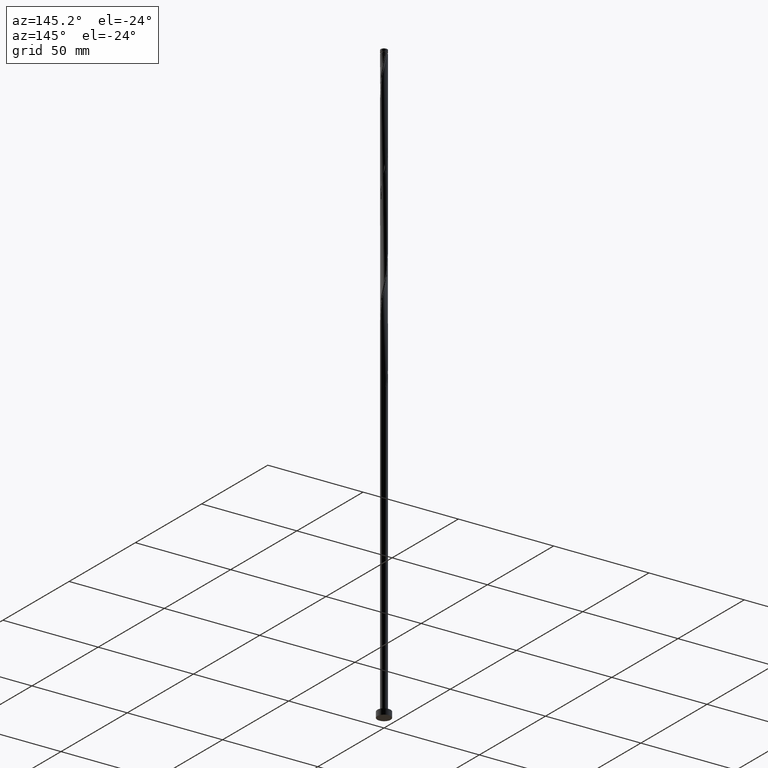
[diagram: clean part render]
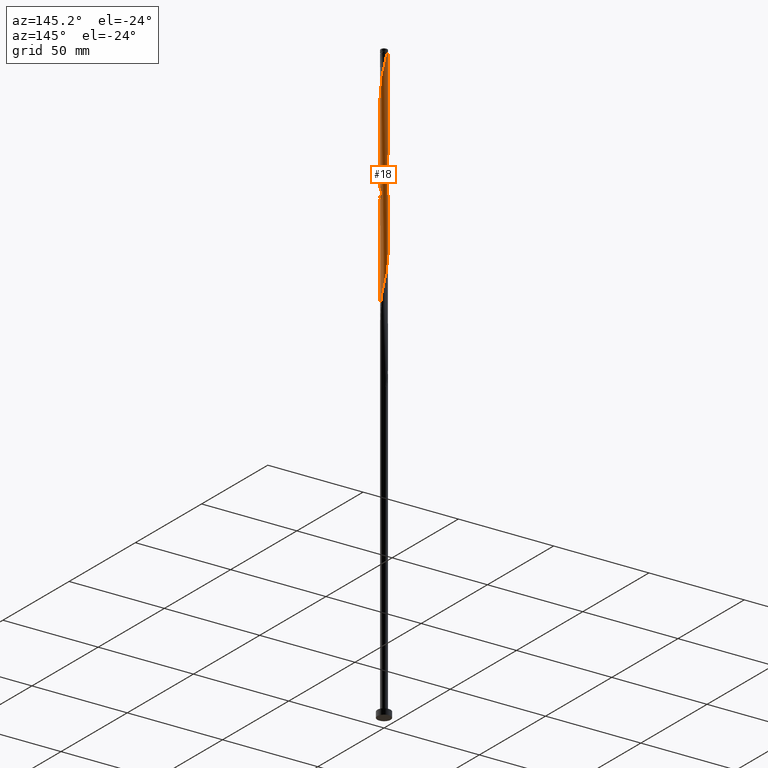
[diagram: same view with one face highlighted and labeled with its STEP entity id]
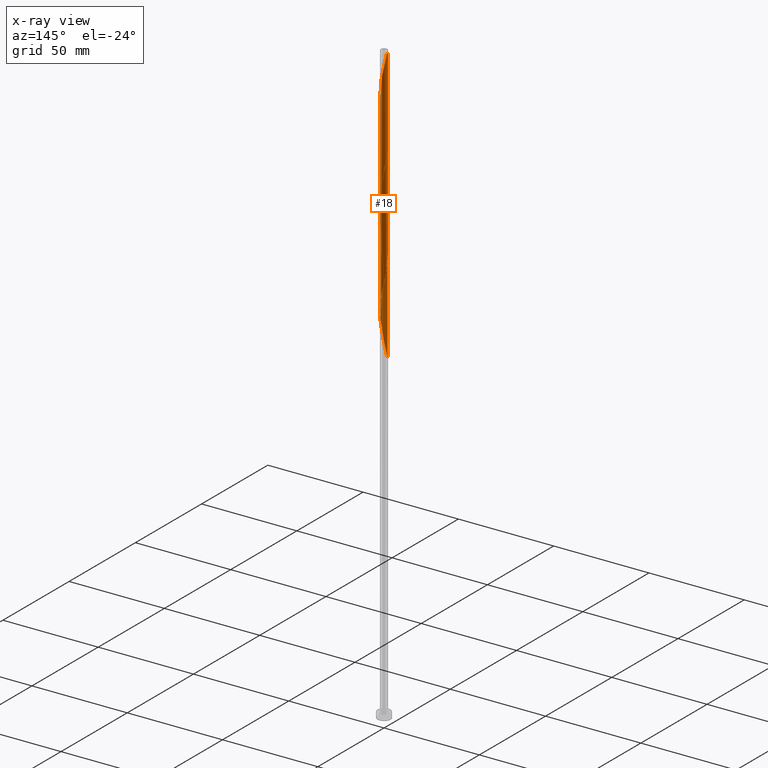
[diagram: x-ray of the same camera — body ghosted, the highlighted face saturated]
A machine part, auxiliary view. The second image highlights one B-rep face of the part: STEP entity #18.
The next image is the same camera in x-ray: the body ghosted, the highlighted face saturated — about 0% of this face is hidden behind the body in this view.
In plain terms, the highlighted cylindrical surface (bore or boss wall) has radius 1.75 mm, axis along (-0, -0, -1).
Its self-contained STEP definition (entity closure, byte-faithful):
#2 = CARTESIAN_POINT ( 'NONE',  ( 1.057869059262093181, 1.394063504097261541, 256.7891389798089108 ) ) ;
#18 = ADVANCED_FACE ( 'NONE', ( #1532 ), #797, .T. ) ;
#25 = CARTESIAN_POINT ( 'NONE',  ( 1.123713410427933601, 1.341554386234278251, 305.5391389798089676 ) ) ;
#34 = CARTESIAN_POINT ( 'NONE',  ( -0.6214747345873319340, -1.647770669082449624, 282.1016389798089108 ) ) ;
#50 = CARTESIAN_POINT ( 'NONE',  ( -1.123713410427933601, -1.341554386234278251, 279.2891389798090245 ) ) ;
#52 = CARTESIAN_POINT ( 'NONE',  ( 1.513256721033685581, -0.9007958258480039948, 244.6016389798089961 ) ) ;
#62 = CARTESIAN_POINT ( 'NONE',  ( 1.749999999999999334, -0.1758816176703649481, 248.2503849787513843 ) ) ;
#78 = CARTESIAN_POINT ( 'NONE',  ( -1.513256721033685581, 0.9007958258480038838, 218.3516389798089676 ) ) ;
#88 = CARTESIAN_POINT ( 'NONE',  ( 1.744748756533622158, 0.2392295972349314792, 197.7266389798089392 ) ) ;
#97 = CARTESIAN_POINT ( 'NONE',  ( 1.214942292676181923, 1.274870287160836391, 203.3516389798089961 ) ) ;
#105 = CARTESIAN_POINT ( 'NONE',  ( 0.2392295972349315902, -1.744748756533622158, 184.6016389798089961 ) ) ;
#114 = VERTEX_POINT ( 'NONE', #1695 ) ;
#115 = CARTESIAN_POINT ( 'NONE',  ( -1.714999999999999636, 0.3482456029873197689, 221.1641389798090245 ) ) ;
#124 = CARTESIAN_POINT ( 'NONE',  ( -1.749999999999999556, -2.332152112738368379E-15, 170.3386560577150703 ) ) ;
#129 = CARTESIAN_POINT ( 'NONE',  ( 0.5414796949160103345, 1.675762144104131490, 259.6016389798089676 ) ) ;
#131 = ORIENTED_EDGE ( 'NONE', *, *, #566, .F. ) ;
#133 = CARTESIAN_POINT ( 'NONE',  ( -1.749493306214745303, -0.04210904308815126978, 170.5391389798089961 ) ) ;
#147 = CARTESIAN_POINT ( 'NONE',  ( 0.1550115110586292588, 1.754237855895867559, 261.4766389798089676 ) ) ;
#161 = CARTESIAN_POINT ( 'NONE',  ( 0.7970156341411801515, 1.557968574437411435, 307.4141389798088539 ) ) ;
#170 = CARTESIAN_POINT ( 'NONE',  ( -0.1550115110586238742, 1.754237855895869336, 312.1016389798089108 ) ) ;
#180 = CARTESIAN_POINT ( 'NONE',  ( 0.1550115110586289258, -1.754237855895869780, 285.8516389798089108 ) ) ;
#187 = CARTESIAN_POINT ( 'NONE',  ( 1.749493306214747523, -0.04210904308815196367, 298.0391389798088539 ) ) ;
#208 = CARTESIAN_POINT ( 'NONE',  ( 1.714999999999999636, -0.3482456029873200465, 247.4141389798090245 ) ) ;
#214 =( BOUNDED_CURVE ( )  B_SPLINE_CURVE ( 2, ( #325, #62, #208, #1142, #1297, #52, #528, #1758, #1041, #790, #1204, #1329, #1610, #942, #676, #359, #1221, #1066, #251, #1076, #1639, #223, #773, #1488, #242, #1340, #1498, #1750, #367, #1618, #115, #232, #385, #78, #1786, #1058, #909, #808, #638, #1357, #1601, #352, #1461, #216, #780, #924, #1322, #1478, #650, #97, #1186, #1776, #1212, #500, #519, #88, #1050, #1628, #666, #658, #916, #798, #1468, #1195, #510, #1767, #376, #933, #1348, #105, #692, #271, #1648, #959, #1516, #1668, #395, #414, #950, #683, #1369, #1104, #1524, #1085, #133, #1506, #124 ),
 .UNSPECIFIED., .F., .F. ) 
 B_SPLINE_CURVE_WITH_KNOTS ( ( 3, 2, 2, 2, 2, 2, 2, 2, 2, 2, 2, 2, 2, 2, 2, 2, 2, 2, 2, 2, 2, 2, 2, 2, 2, 2, 2, 2, 2, 2, 2, 2, 2, 2, 2, 2, 2, 2, 2, 2, 2, 2, 2, 3 ),
 ( 0.5545303401299220836, 0.5625000000000000000, 0.5714285714285713969, 0.5803571428571429047, 0.5892857142857143016, 0.5982142857142856984, 0.6071428571428570953, 0.6160714285714286031, 0.6250000000000000000, 0.6339285714285713969, 0.6428571428571429047, 0.6517857142857143016, 0.6607142857142856984, 0.6696428571428570953, 0.6785714285714286031, 0.6875000000000000000, 0.6964285714285713969, 0.7053571428571429047, 0.7142857142857143016, 0.7232142857142856984, 0.7321428571428570953, 0.7410714285714286031, 0.7500000000000000000, 0.7589285714285713969, 0.7678571428571429047, 0.7767857142857143016, 0.7857142857142856984, 0.7946428571428570953, 0.8035714285714286031, 0.8125000000000000000, 0.8214285714285713969, 0.8303571428571429047, 0.8392857142857143016, 0.8482142857142856984, 0.8571428571428570953, 0.8660714285714286031, 0.8750000000000000000, 0.8839285714285713969, 0.8928571428571429047, 0.9017857142857141906, 0.9107142857142855874, 0.9196428571428569843, 0.9285714285714286031, 0.9295303401299221946 ),
 .UNSPECIFIED. ) 
 CURVE ( )  GEOMETRIC_REPRESENTATION_ITEM ( )  RATIONAL_B_SPLINE_CURVE ( ( 0.9079949616362397169, 0.9039886423361027656, 0.9090909090909695678, 0.9033747362666444403, 0.9090909090909695678, 0.9033747362666444403, 0.9090909090909695678, 0.9033747362666444403, 0.9090909090909695678, 0.9033747362666444403, 0.9090909090909695678, 0.9033747362666444403, 0.9090909090909695678, 0.9033747362666444403, 0.9090909090909695678, 0.9033747362666444403, 0.9090909090909695678, 0.9033747362666444403, 0.9090909090909695678, 0.9033747362666444403, 0.9090909090909695678, 0.9033747362666444403, 0.9090909090909695678, 0.9033747362666444403, 0.9090909090909695678, 0.9033747362666444403, 0.9090909090909695678, 0.9033747362666444403, 0.9090909090909695678, 0.9033747362666444403, 0.9090909090909695678, 0.9033747362666444403, 0.9090909090909695678, 0.9033747362666444403, 0.9090909090909695678, 0.9033747362666444403, 0.9090909090909695678, 0.9033747362666444403, 0.9090909090909695678, 0.9033747362666444403, 0.9090909090909695678, 0.9033747362666444403, 0.9090909090909695678, 0.9033747362666444403, 0.9090909090909695678, 0.9033747362666444403, 0.9090909090909695678, 0.9033747362666444403, 0.9090909090909695678, 0.9033747362666444403, 0.9090909090909695678, 0.9033747362666444403, 0.9090909090909695678, 0.9033747362666444403, 0.9090909090909695678, 0.9033747362666444403, 0.9090909090909695678, 0.9033747362666444403, 0.9090909090909695678, 0.9033747362666444403, 0.9090909090909695678, 0.9033747362666444403, 0.9090909090909695678, 0.9033747362666444403, 0.9090909090909695678, 0.9033747362666444403, 0.9090909090909695678, 0.9033747362666444403, 0.9090909090909695678, 0.9033747362666444403, 0.9090909090909695678, 0.9033747362666444403, 0.9090909090909695678, 0.9033747362666444403, 0.9090909090909695678, 0.9033747362666444403, 0.9090909090909695678, 0.9033747362666444403, 0.9090909090909695678, 0.9033747362666444403, 0.9090909090909695678, 0.9033747362666444403, 0.9090909090909695678, 0.9033747362666444403, 0.9090909090909695678, 0.9084770030215112424, 0.9079949616362394949 ) ) 
 REPRESENTATION_ITEM ( '' )  );
#216 = CARTESIAN_POINT ( 'NONE',  ( 0.1550115110586292588, 1.754237855895867559, 208.9766389798089392 ) ) ;
#223 = CARTESIAN_POINT ( 'NONE',  ( -1.214942292676181479, -1.274870287160836391, 229.6016389798089392 ) ) ;
#232 = CARTESIAN_POINT ( 'NONE',  ( -1.675762144104131490, 0.5414796949160098904, 220.2266389798090245 ) ) ;
#237 = EDGE_CURVE ( 'NONE', #250, #907, #263, .T. ) ;
#242 = CARTESIAN_POINT ( 'NONE',  ( -1.557968574437410103, -0.7970156341411784862, 226.7891389798089961 ) ) ;
#250 = VERTEX_POINT ( 'NONE', #873 ) ;
#251 = CARTESIAN_POINT ( 'NONE',  ( -0.7211377603820071647, -1.594509432568908869, 232.4141389798090245 ) ) ;
#263 =( BOUNDED_CURVE ( )  B_SPLINE_CURVE ( 2, ( #573, #862, #1120, #1129, #1541, #1403, #716, #992, #50, #856, #1440, #34, #1687, #1579, #594, #180, #737, #744, #986, #1140, #453, #1707, #576, #1003, #1415, #1561, #1723, #1295, #187, #1158, #1288, #865, #1021, #601, #1430, #314, #25, #609, #161, #1422, #1150, #719, #1279, #170, #585 ),
 .UNSPECIFIED., .F., .T. ) 
 B_SPLINE_CURVE_WITH_KNOTS ( ( 3, 2, 2, 2, 2, 2, 2, 2, 2, 2, 2, 2, 2, 2, 2, 2, 2, 2, 2, 2, 2, 2, 3 ),
 ( 0.5545303401299224166, 0.5625000000000000000, 0.5714285714285713969, 0.5803571428571427937, 0.5892857142857143016, 0.5982142857142855874, 0.6071428571428572063, 0.6160714285714284921, 0.6249999999999998890, 0.6339285714285712858, 0.6428571428571426827, 0.6517857142857141906, 0.6607142857142855874, 0.6696428571428570953, 0.6785714285714284921, 0.6874999999999998890, 0.6964285714285711748, 0.7053571428571425717, 0.7142857142857141906, 0.7232142857142854764, 0.7321428571428569843, 0.7410714285714283811, 0.7499999999999997780 ),
 .UNSPECIFIED. ) 
 CURVE ( )  GEOMETRIC_REPRESENTATION_ITEM ( )  RATIONAL_B_SPLINE_CURVE ( ( 0.9079949616362448239, 0.9039886423361083168, 0.9090909090909750079, 0.9033747362666497693, 0.9090909090909750079, 0.9033747362666497693, 0.9090909090909750079, 0.9033747362666497693, 0.9090909090909750079, 0.9033747362666497693, 0.9090909090909750079, 0.9033747362666497693, 0.9090909090909750079, 0.9033747362666497693, 0.9090909090909750079, 0.9033747362666497693, 0.9090909090909750079, 0.9033747362666497693, 0.9090909090909750079, 0.9033747362666497693, 0.9090909090909750079, 0.9033747362666497693, 0.9090909090909750079, 0.9033747362666497693, 0.9090909090909750079, 0.9033747362666497693, 0.9090909090909750079, 0.9033747362666497693, 0.9090909090909750079, 0.9033747362666497693, 0.9090909090909750079, 0.9033747362666497693, 0.9090909090909750079, 0.9033747362666497693, 0.9090909090909750079, 0.9033747362666497693, 0.9090909090909750079, 0.9033747362666497693, 0.9090909090909750079, 0.9033747362666497693, 0.9090909090909750079, 0.9033747362666497693, 0.9090909090909750079, 0.9033747362666499914, 0.9090909090909747858 ) ) 
 REPRESENTATION_ITEM ( '' )  );
#267 = CARTESIAN_POINT ( 'NONE',  ( -0.4303521659111312903, 1.696259712808035447, 264.2891389798089676 ) ) ;
#271 = CARTESIAN_POINT ( 'NONE',  ( -0.1550115110586294254, -1.754237855895867559, 182.7266389798089676 ) ) ;
#298 = DIRECTION ( 'NONE',  ( -0.000000000000000000, -0.000000000000000000, -1.000000000000000000 ) ) ;
#314 = CARTESIAN_POINT ( 'NONE',  ( 1.274870287160838611, 1.214942292676182367, 304.6016389798089108 ) ) ;
#321 = CARTESIAN_POINT ( 'NONE',  ( 1.749999999999999556, 2.130654170197773798E-15, 249.0886560577149851 ) ) ;
#323 = CARTESIAN_POINT ( 'NONE',  ( -1.749999999999973799, 0.000000000000000000, 313.0391389798089676 ) ) ;
#325 = CARTESIAN_POINT ( 'NONE',  ( 1.749999999999999556, 2.130654170197774193E-15, 249.0886560577149851 ) ) ;
#352 = CARTESIAN_POINT ( 'NONE',  ( -0.2392295972349318955, 1.744748756533622602, 210.8516389798089676 ) ) ;
#359 = CARTESIAN_POINT ( 'NONE',  ( -0.1550115110586294254, -1.754237855895867559, 235.2266389798089108 ) ) ;
#367 = CARTESIAN_POINT ( 'NONE',  ( -1.749493306214745303, -0.04210904308815126978, 223.0391389798089676 ) ) ;
#376 = CARTESIAN_POINT ( 'NONE',  ( 0.7970156341411782641, -1.557968574437410103, 187.4141389798090245 ) ) ;
#385 = CARTESIAN_POINT ( 'NONE',  ( -1.594509432568908869, 0.7211377603820070536, 219.2891389798089961 ) ) ;
#395 = CARTESIAN_POINT ( 'NONE',  ( -1.057869059262093181, -1.394063504097261541, 178.0391389798089676 ) ) ;
#401 = EDGE_CURVE ( 'NONE', #421, #907, #642, .T. ) ;
#402 = ORIENTED_EDGE ( 'NONE', *, *, #1284, .T. ) ;
#410 = CARTESIAN_POINT ( 'NONE',  ( -0.9725565336950267037, 1.468166479792371915, 267.1016389798089108 ) ) ;
#414 = CARTESIAN_POINT ( 'NONE',  ( -1.214942292676181479, -1.274870287160836391, 177.1016389798089392 ) ) ;
#421 = VERTEX_POINT ( 'NONE', #323 ) ;
#430 = CARTESIAN_POINT ( 'NONE',  ( 1.749493306214745303, 0.04210904308815104774, 249.2891389798089392 ) ) ;
#446 = CARTESIAN_POINT ( 'NONE',  ( -0.3482456029873556291, 1.715000000000458824, 313.0391389798088539 ) ) ;
#453 = CARTESIAN_POINT ( 'NONE',  ( 1.057869059262093625, -1.394063504097263539, 290.5391389798089108 ) ) ;
#477 = EDGE_CURVE ( 'NONE', #250, #1339, #1563, .T. ) ;
#492 = CARTESIAN_POINT ( 'NONE',  ( -1.750000000000000000, 0.000000000000000000, 315.0000000000000000 ) ) ;
#496 = VECTOR ( 'NONE', #1005, 1000.000000000000000 ) ;
#497 = CARTESIAN_POINT ( 'NONE',  ( -1.513256721033685581, 0.9007958258480038838, 270.8516389798089676 ) ) ;
#500 = CARTESIAN_POINT ( 'NONE',  ( 1.647770669082447403, 0.6214747345873303797, 199.6016389798089676 ) ) ;
#510 = CARTESIAN_POINT ( 'NONE',  ( 1.123713410427931603, -1.341554386234277141, 189.2891389798089392 ) ) ;
#519 = CARTESIAN_POINT ( 'NONE',  ( 1.696259712808035447, 0.4303521659111308462, 198.6641389798089392 ) ) ;
#528 = CARTESIAN_POINT ( 'NONE',  ( 1.394063504097261541, -1.057869059262093181, 243.6641389798090245 ) ) ;
#543 = CARTESIAN_POINT ( 'NONE',  ( -0.7970156341411784862, 1.557968574437410103, 266.1641389798089676 ) ) ;
#561 = CARTESIAN_POINT ( 'NONE',  ( 1.696259712808035447, 0.4303521659111308462, 251.1641389798089392 ) ) ;
#566 = EDGE_CURVE ( 'NONE', #1111, #1339, #214, .T. ) ;
#573 = CARTESIAN_POINT ( 'NONE',  ( -1.750000000000002220, 5.410592901552984017E-16, 271.9896219019029218 ) ) ;
#576 = CARTESIAN_POINT ( 'NONE',  ( 1.341554386234278251, -1.123713410427933601, 292.4141389798090813 ) ) ;
#585 = CARTESIAN_POINT ( 'NONE',  ( -0.3482456029873556291, 1.715000000000458824, 313.0391389798088539 ) ) ;
#594 = CARTESIAN_POINT ( 'NONE',  ( -0.04210904308815181102, -1.749493306214747523, 284.9141389798089676 ) ) ;
#601 = CARTESIAN_POINT ( 'NONE',  ( 1.513256721033688024, 0.9007958258480041058, 302.7266389798089676 ) ) ;
#609 = CARTESIAN_POINT ( 'NONE',  ( 0.9725565336950284800, 1.468166479792373025, 306.4766389798088539 ) ) ;
#612 = AXIS2_PLACEMENT_3D ( 'NONE', #1075, #1497, #1647 ) ;
#628 = LINE ( 'NONE', #1712, #815 ) ;
#638 = CARTESIAN_POINT ( 'NONE',  ( -0.7970156341411784862, 1.557968574437410103, 213.6641389798089392 ) ) ;
#642 = CIRCLE ( 'NONE', #1661, 1.749999999999973799 ) ;
#650 = CARTESIAN_POINT ( 'NONE',  ( 1.057869059262093181, 1.394063504097261541, 204.2891389798089961 ) ) ;
#654 = LINE ( 'NONE', #1782, #1330 ) ;
#658 = CARTESIAN_POINT ( 'NONE',  ( 1.675762144104131490, -0.5414796949160101125, 193.9766389798089108 ) ) ;
#666 = CARTESIAN_POINT ( 'NONE',  ( 1.714999999999999636, -0.3482456029873200465, 194.9141389798089961 ) ) ;
#676 = CARTESIAN_POINT ( 'NONE',  ( 0.04210904308815115182, -1.749493306214745303, 236.1641389798090245 ) ) ;
#683 = CARTESIAN_POINT ( 'NONE',  ( -1.468166479792371915, -0.9725565336950264816, 175.2266389798089108 ) ) ;
#688 = CARTESIAN_POINT ( 'NONE',  ( 1.557968574437410103, 0.7970156341411782641, 253.0391389798089392 ) ) ;
#692 = CARTESIAN_POINT ( 'NONE',  ( 0.04210904308815115182, -1.749493306214745303, 183.6641389798089676 ) ) ;
#714 = CARTESIAN_POINT ( 'NONE',  ( 1.750000000000000222, 0.02105757004118054970, 249.1890187459400750 ) ) ;
#716 = CARTESIAN_POINT ( 'NONE',  ( -1.394063504097263539, -1.057869059262093625, 277.4141389798089676 ) ) ;
#719 = CARTESIAN_POINT ( 'NONE',  ( 0.2392295972349328392, 1.744748756533624601, 310.2266389798089108 ) ) ;
#737 = CARTESIAN_POINT ( 'NONE',  ( 0.3482456029873196579, -1.715000000000001856, 286.7891389798089676 ) ) ;
#744 = CARTESIAN_POINT ( 'NONE',  ( 0.5414796949160100015, -1.675762144104133489, 287.7266389798088539 ) ) ;
#752 =( BOUNDED_CURVE ( )  B_SPLINE_CURVE ( 2, ( #929, #1366, #1054, #1344, #1614, #497, #920, #786, #1682, #410, #543, #1539, #267, #831, #1393, #147, #1234, #129, #1099, #1226, #2, #1530, #1791, #980, #688, #1798, #561, #1375, #430, #714, #1255 ),
 .UNSPECIFIED., .F., .F. ) 
 B_SPLINE_CURVE_WITH_KNOTS ( ( 3, 2, 2, 2, 2, 2, 2, 2, 2, 2, 2, 2, 2, 2, 2, 3 ),
 ( 0.4295303401299220281, 0.4375000000000000000, 0.4464285714285714524, 0.4553571428571428492, 0.4642857142857143016, 0.4732142857142856984, 0.4821428571428571508, 0.4910714285714285476, 0.5000000000000000000, 0.5089285714285713969, 0.5178571428571429047, 0.5267857142857143016, 0.5357142857142856984, 0.5446428571428570953, 0.5535714285714286031, 0.5545303401299220836 ),
 .UNSPECIFIED. ) 
 CURVE ( )  GEOMETRIC_REPRESENTATION_ITEM ( )  RATIONAL_B_SPLINE_CURVE ( ( 0.9079949616362394949, 0.9039886423361027656, 0.9090909090909695678, 0.9033747362666444403, 0.9090909090909695678, 0.9033747362666444403, 0.9090909090909695678, 0.9033747362666444403, 0.9090909090909695678, 0.9033747362666444403, 0.9090909090909695678, 0.9033747362666444403, 0.9090909090909695678, 0.9033747362666444403, 0.9090909090909695678, 0.9033747362666444403, 0.9090909090909695678, 0.9033747362666444403, 0.9090909090909695678, 0.9033747362666444403, 0.9090909090909695678, 0.9033747362666444403, 0.9090909090909695678, 0.9033747362666444403, 0.9090909090909695678, 0.9033747362666444403, 0.9090909090909695678, 0.9033747362666444403, 0.9090909090909695678, 0.9084770030215113534, 0.9079949616362397169 ) ) 
 REPRESENTATION_ITEM ( '' )  );
#773 = CARTESIAN_POINT ( 'NONE',  ( -1.341554386234276919, -1.123713410427931603, 228.6641389798089961 ) ) ;
#780 = CARTESIAN_POINT ( 'NONE',  ( 0.3482456029873201575, 1.714999999999999636, 208.0391389798089961 ) ) ;
#786 = CARTESIAN_POINT ( 'NONE',  ( -1.274870287160836391, 1.214942292676181479, 268.9766389798089676 ) ) ;
#790 = CARTESIAN_POINT ( 'NONE',  ( 0.9725565336950264816, -1.468166479792372137, 240.8516389798089676 ) ) ;
#797 = CYLINDRICAL_SURFACE ( 'NONE', #612, 1.750000000000000000 ) ;
#798 = CARTESIAN_POINT ( 'NONE',  ( 1.513256721033685581, -0.9007958258480039948, 192.1016389798089392 ) ) ;
#808 = CARTESIAN_POINT ( 'NONE',  ( -0.9725565336950267037, 1.468166479792371915, 214.6016389798089392 ) ) ;
#815 = VECTOR ( 'NONE', #1175, 1000.000000000000000 ) ;
#831 = CARTESIAN_POINT ( 'NONE',  ( -0.2392295972349318955, 1.744748756533622602, 263.3516389798089108 ) ) ;
#856 = CARTESIAN_POINT ( 'NONE',  ( -0.9725565336950283690, -1.468166479792373247, 280.2266389798089108 ) ) ;
#862 = CARTESIAN_POINT ( 'NONE',  ( -1.750000000000000444, -0.1758816176703718315, 272.8278929808665225 ) ) ;
#865 = CARTESIAN_POINT ( 'NONE',  ( 1.675762144104133489, 0.5414796949160100015, 300.8516389798087971 ) ) ;
#873 = CARTESIAN_POINT ( 'NONE',  ( -1.750000000000002220, 5.410592901552984017E-16, 271.9896219019029218 ) ) ;
#898 = ORIENTED_EDGE ( 'NONE', *, *, #1284, .F. ) ;
#907 = VERTEX_POINT ( 'NONE', #446 ) ;
#909 = CARTESIAN_POINT ( 'NONE',  ( -1.123713410427931603, 1.341554386234276919, 215.5391389798089676 ) ) ;
#916 = CARTESIAN_POINT ( 'NONE',  ( 1.594509432568908869, -0.7211377603820073867, 193.0391389798089676 ) ) ;
#920 = CARTESIAN_POINT ( 'NONE',  ( -1.394063504097261541, 1.057869059262092959, 269.9141389798090245 ) ) ;
#924 = CARTESIAN_POINT ( 'NONE',  ( 0.5414796949160103345, 1.675762144104131490, 207.1016389798089676 ) ) ;
#929 = CARTESIAN_POINT ( 'NONE',  ( -1.750000000000000222, -1.567206219760183938E-16, 275.3386560577150135 ) ) ;
#933 = CARTESIAN_POINT ( 'NONE',  ( 0.6214747345873304907, -1.647770669082447403, 186.4766389798089392 ) ) ;
#938 = CARTESIAN_POINT ( 'NONE',  ( -1.749999999999999556, -2.332152112738368379E-15, 170.3386560577150419 ) ) ;
#942 = CARTESIAN_POINT ( 'NONE',  ( 0.2392295972349315902, -1.744748756533622158, 237.1016389798089108 ) ) ;
#950 = CARTESIAN_POINT ( 'NONE',  ( -1.341554386234276919, -1.123713410427931603, 176.1641389798089676 ) ) ;
#957 = VERTEX_POINT ( 'NONE', #1715 ) ;
#959 = CARTESIAN_POINT ( 'NONE',  ( -0.5414796949160100015, -1.675762144104131490, 180.8516389798089676 ) ) ;
#980 = CARTESIAN_POINT ( 'NONE',  ( 1.468166479792372137, 0.9725565336950262596, 253.9766389798088824 ) ) ;
#986 = CARTESIAN_POINT ( 'NONE',  ( 0.7211377603820072757, -1.594509432568911311, 288.6641389798089676 ) ) ;
#992 = CARTESIAN_POINT ( 'NONE',  ( -1.274870287160838611, -1.214942292676182811, 278.3516389798089108 ) ) ;
#1003 = CARTESIAN_POINT ( 'NONE',  ( 1.468166479792373247, -0.9725565336950284800, 293.3516389798088539 ) ) ;
#1005 = DIRECTION ( 'NONE',  ( -0.000000000000000000, -0.000000000000000000, -1.000000000000000000 ) ) ;
#1021 = CARTESIAN_POINT ( 'NONE',  ( 1.594509432568911311, 0.7211377603820072757, 301.7891389798089108 ) ) ;
#1041 = CARTESIAN_POINT ( 'NONE',  ( 1.123713410427931603, -1.341554386234277141, 241.7891389798089392 ) ) ;
#1049 = ORIENTED_EDGE ( 'NONE', *, *, #237, .F. ) ;
#1050 = CARTESIAN_POINT ( 'NONE',  ( 1.749493306214745303, 0.04210904308815104774, 196.7891389798089676 ) ) ;
#1054 = CARTESIAN_POINT ( 'NONE',  ( -1.714999999999999636, 0.3482456029873197689, 273.6641389798089676 ) ) ;
#1058 = CARTESIAN_POINT ( 'NONE',  ( -1.274870287160836391, 1.214942292676181479, 216.4766389798088824 ) ) ;
#1066 = CARTESIAN_POINT ( 'NONE',  ( -0.5414796949160100015, -1.675762144104131490, 233.3516389798089392 ) ) ;
#1075 = CARTESIAN_POINT ( 'NONE',  ( 0.000000000000000000, 0.000000000000000000, 315.0000000000000000 ) ) ;
#1076 = CARTESIAN_POINT ( 'NONE',  ( -0.9007958258480038838, -1.513256721033685581, 231.4766389798089676 ) ) ;
#1085 = CARTESIAN_POINT ( 'NONE',  ( -1.744748756533622158, -0.2392295972349316735, 171.4766389798089108 ) ) ;
#1099 = CARTESIAN_POINT ( 'NONE',  ( 0.7211377603820073867, 1.594509432568908647, 258.6641389798089676 ) ) ;
#1104 = CARTESIAN_POINT ( 'NONE',  ( -1.647770669082447403, -0.6214747345873304907, 173.3516389798089108 ) ) ;
#1111 = VERTEX_POINT ( 'NONE', #321 ) ;
#1116 = EDGE_CURVE ( 'NONE', #421, #957, #628, .T. ) ;
#1120 = CARTESIAN_POINT ( 'NONE',  ( -1.715000000000001856, -0.3482456029873198244, 273.6641389798089108 ) ) ;
#1129 = CARTESIAN_POINT ( 'NONE',  ( -1.675762144104133489, -0.5414796949160102235, 274.6016389798088539 ) ) ;
#1140 = CARTESIAN_POINT ( 'NONE',  ( 0.9007958258480042169, -1.513256721033688024, 289.6016389798089676 ) ) ;
#1142 = CARTESIAN_POINT ( 'NONE',  ( 1.675762144104131490, -0.5414796949160101125, 246.4766389798089392 ) ) ;
#1150 = CARTESIAN_POINT ( 'NONE',  ( 0.4303521659111325115, 1.696259712808037223, 309.2891389798090245 ) ) ;
#1158 = CARTESIAN_POINT ( 'NONE',  ( 1.754237855895869780, 0.1550115110586288980, 298.9766389798088539 ) ) ;
#1175 = DIRECTION ( 'NONE',  ( -0.000000000000000000, -0.000000000000000000, -1.000000000000000000 ) ) ;
#1177 = ORIENTED_EDGE ( 'NONE', *, *, #1116, .F. ) ;
#1186 = CARTESIAN_POINT ( 'NONE',  ( 1.341554386234277141, 1.123713410427931603, 202.4141389798089392 ) ) ;
#1195 = CARTESIAN_POINT ( 'NONE',  ( 1.274870287160836391, -1.214942292676181479, 190.2266389798089676 ) ) ;
#1202 = ORIENTED_EDGE ( 'NONE', *, *, #401, .T. ) ;
#1204 = CARTESIAN_POINT ( 'NONE',  ( 0.7970156341411782641, -1.557968574437410103, 239.9141389798090245 ) ) ;
#1212 = CARTESIAN_POINT ( 'NONE',  ( 1.557968574437410103, 0.7970156341411782641, 200.5391389798089676 ) ) ;
#1221 = CARTESIAN_POINT ( 'NONE',  ( -0.3482456029873199355, -1.714999999999999636, 234.2891389798090245 ) ) ;
#1226 = CARTESIAN_POINT ( 'NONE',  ( 0.9007958258480039948, 1.513256721033685581, 257.7266389798089108 ) ) ;
#1234 = CARTESIAN_POINT ( 'NONE',  ( 0.3482456029873201575, 1.714999999999999636, 260.5391389798089676 ) ) ;
#1255 = CARTESIAN_POINT ( 'NONE',  ( 1.749999999999999556, 2.130654170197774193E-15, 249.0886560577149851 ) ) ;
#1279 = CARTESIAN_POINT ( 'NONE',  ( 0.04210904308815201919, 1.749493306214747301, 311.1641389798088539 ) ) ;
#1284 = EDGE_CURVE ( 'NONE', #114, #1111, #654, .T. ) ;
#1288 = CARTESIAN_POINT ( 'NONE',  ( 1.715000000000001856, 0.3482456029873196024, 299.9141389798089676 ) ) ;
#1295 = CARTESIAN_POINT ( 'NONE',  ( 1.744748756533624601, -0.2392295972349328392, 297.1016389798088539 ) ) ;
#1297 = CARTESIAN_POINT ( 'NONE',  ( 1.594509432568908869, -0.7211377603820073867, 245.5391389798089392 ) ) ;
#1321 = ORIENTED_EDGE ( 'NONE', *, *, #477, .T. ) ;
#1322 = CARTESIAN_POINT ( 'NONE',  ( 0.7211377603820073867, 1.594509432568908647, 206.1641389798089392 ) ) ;
#1329 = CARTESIAN_POINT ( 'NONE',  ( 0.6214747345873304907, -1.647770669082447403, 238.9766389798089676 ) ) ;
#1330 = VECTOR ( 'NONE', #1644, 1000.000000000000000 ) ;
#1339 = VERTEX_POINT ( 'NONE', #938 ) ;
#1340 = CARTESIAN_POINT ( 'NONE',  ( -1.647770669082447403, -0.6214747345873304907, 225.8516389798089676 ) ) ;
#1344 = CARTESIAN_POINT ( 'NONE',  ( -1.675762144104131490, 0.5414796949160098904, 272.7266389798089676 ) ) ;
#1348 = CARTESIAN_POINT ( 'NONE',  ( 0.4303521659111310127, -1.696259712808035447, 185.5391389798089676 ) ) ;
#1357 = CARTESIAN_POINT ( 'NONE',  ( -0.6214747345873308237, 1.647770669082447403, 212.7266389798089108 ) ) ;
#1366 = CARTESIAN_POINT ( 'NONE',  ( -1.749999999999999778, 0.1758816176703646983, 274.5003849787513559 ) ) ;
#1369 = CARTESIAN_POINT ( 'NONE',  ( -1.557968574437410103, -0.7970156341411784862, 174.2891389798089961 ) ) ;
#1375 = CARTESIAN_POINT ( 'NONE',  ( 1.744748756533622158, 0.2392295972349314792, 250.2266389798089676 ) ) ;
#1393 = CARTESIAN_POINT ( 'NONE',  ( -0.04210904308815131142, 1.749493306214745303, 262.4141389798089676 ) ) ;
#1403 = CARTESIAN_POINT ( 'NONE',  ( -1.513256721033688024, -0.9007958258480042169, 276.4766389798088539 ) ) ;
#1406 = DIRECTION ( 'NONE',  ( -1.000000000000000000, 0.000000000000000000, 0.000000000000000000 ) ) ;
#1415 = CARTESIAN_POINT ( 'NONE',  ( 1.557968574437411435, -0.7970156341411801515, 294.2891389798090245 ) ) ;
#1422 = CARTESIAN_POINT ( 'NONE',  ( 0.6214747345873321560, 1.647770669082449402, 308.3516389798089676 ) ) ;
#1430 = CARTESIAN_POINT ( 'NONE',  ( 1.394063504097263761, 1.057869059262093625, 303.6641389798088539 ) ) ;
#1440 = CARTESIAN_POINT ( 'NONE',  ( -0.7970156341411798184, -1.557968574437411435, 281.1641389798089676 ) ) ;
#1451 = EDGE_LOOP ( 'NONE', ( #1177, #1202, #1049, #1321, #131, #898, #402, #1522 ) ) ;
#1461 = CARTESIAN_POINT ( 'NONE',  ( -0.04210904308815131142, 1.749493306214745303, 209.9141389798089676 ) ) ;
#1468 = CARTESIAN_POINT ( 'NONE',  ( 1.394063504097261541, -1.057869059262093181, 191.1641389798089961 ) ) ;
#1478 = CARTESIAN_POINT ( 'NONE',  ( 0.9007958258480039948, 1.513256721033685581, 205.2266389798089961 ) ) ;
#1488 = CARTESIAN_POINT ( 'NONE',  ( -1.468166479792371915, -0.9725565336950264816, 227.7266389798089392 ) ) ;
#1497 = DIRECTION ( 'NONE',  ( -0.000000000000000000, -0.000000000000000000, -1.000000000000000000 ) ) ;
#1498 = CARTESIAN_POINT ( 'NONE',  ( -1.696259712808035447, -0.4303521659111311792, 224.9141389798089392 ) ) ;
#1506 = CARTESIAN_POINT ( 'NONE',  ( -1.750000000000000222, -0.02105757004117833273, 170.4390187459401034 ) ) ;
#1516 = CARTESIAN_POINT ( 'NONE',  ( -0.7211377603820071647, -1.594509432568908869, 179.9141389798090245 ) ) ;
#1522 = ORIENTED_EDGE ( 'NONE', *, *, #1670, .F. ) ;
#1524 = CARTESIAN_POINT ( 'NONE',  ( -1.696259712808035447, -0.4303521659111311792, 172.4141389798089392 ) ) ;
#1530 = CARTESIAN_POINT ( 'NONE',  ( 1.214942292676181923, 1.274870287160836391, 255.8516389798088824 ) ) ;
#1532 = FACE_OUTER_BOUND ( 'NONE', #1451, .T. ) ;
#1539 = CARTESIAN_POINT ( 'NONE',  ( -0.6214747345873308237, 1.647770669082447403, 265.2266389798089676 ) ) ;
#1541 = CARTESIAN_POINT ( 'NONE',  ( -1.594509432568911311, -0.7211377603820073867, 275.5391389798089676 ) ) ;
#1561 = CARTESIAN_POINT ( 'NONE',  ( 1.647770669082449624, -0.6214747345873319340, 295.2266389798089108 ) ) ;
#1563 = LINE ( 'NONE', #492, #496 ) ;
#1571 = CARTESIAN_POINT ( 'NONE',  ( 0.000000000000000000, 0.000000000000000000, 313.0391389798089676 ) ) ;
#1579 = CARTESIAN_POINT ( 'NONE',  ( -0.2392295972349327005, -1.744748756533624601, 283.9766389798089676 ) ) ;
#1601 = CARTESIAN_POINT ( 'NONE',  ( -0.4303521659111312903, 1.696259712808035447, 211.7891389798089676 ) ) ;
#1610 = CARTESIAN_POINT ( 'NONE',  ( 0.4303521659111310127, -1.696259712808035447, 238.0391389798089961 ) ) ;
#1614 = CARTESIAN_POINT ( 'NONE',  ( -1.594509432568908869, 0.7211377603820070536, 271.7891389798089676 ) ) ;
#1618 = CARTESIAN_POINT ( 'NONE',  ( -1.754237855895867559, 0.1550115110586293421, 222.1016389798089676 ) ) ;
#1628 = CARTESIAN_POINT ( 'NONE',  ( 1.754237855895867559, -0.1550115110586295086, 195.8516389798089392 ) ) ;
#1639 = CARTESIAN_POINT ( 'NONE',  ( -1.057869059262093181, -1.394063504097261541, 230.5391389798089961 ) ) ;
#1644 = DIRECTION ( 'NONE',  ( -0.000000000000000000, -0.000000000000000000, -1.000000000000000000 ) ) ;
#1647 = DIRECTION ( 'NONE',  ( -1.000000000000000000, 0.000000000000000000, 0.000000000000000000 ) ) ;
#1648 = CARTESIAN_POINT ( 'NONE',  ( -0.3482456029873199355, -1.714999999999999636, 181.7891389798089108 ) ) ;
#1661 = AXIS2_PLACEMENT_3D ( 'NONE', #1571, #298, #1406 ) ;
#1668 = CARTESIAN_POINT ( 'NONE',  ( -0.9007958258480038838, -1.513256721033685581, 178.9766389798089961 ) ) ;
#1670 = EDGE_CURVE ( 'NONE', #957, #1111, #752, .T. ) ;
#1682 = CARTESIAN_POINT ( 'NONE',  ( -1.123713410427931603, 1.341554386234276919, 268.0391389798089676 ) ) ;
#1687 = CARTESIAN_POINT ( 'NONE',  ( -0.4303521659111322895, -1.696259712808037223, 283.0391389798089108 ) ) ;
#1695 = CARTESIAN_POINT ( 'NONE',  ( 1.750000000000000000, 2.143131898507868297E-16, 313.0391389798089676 ) ) ;
#1707 = CARTESIAN_POINT ( 'NONE',  ( 1.214942292676182811, -1.274870287160838611, 291.4766389798090245 ) ) ;
#1712 = CARTESIAN_POINT ( 'NONE',  ( -1.750000000000000000, 0.000000000000000000, 315.0000000000000000 ) ) ;
#1715 = CARTESIAN_POINT ( 'NONE',  ( -1.750000000000000222, -1.567206219760183938E-16, 275.3386560577150135 ) ) ;
#1723 = CARTESIAN_POINT ( 'NONE',  ( 1.696259712808037223, -0.4303521659111324005, 296.1641389798090245 ) ) ;
#1750 = CARTESIAN_POINT ( 'NONE',  ( -1.744748756533622158, -0.2392295972349316735, 223.9766389798089676 ) ) ;
#1758 = CARTESIAN_POINT ( 'NONE',  ( 1.274870287160836391, -1.214942292676181479, 242.7266389798089961 ) ) ;
#1767 = CARTESIAN_POINT ( 'NONE',  ( 0.9725565336950264816, -1.468166479792372137, 188.3516389798089392 ) ) ;
#1776 = CARTESIAN_POINT ( 'NONE',  ( 1.468166479792372137, 0.9725565336950262596, 201.4766389798089108 ) ) ;
#1782 = CARTESIAN_POINT ( 'NONE',  ( 1.750000000000000000, 2.143131898507868297E-16, 315.0000000000000000 ) ) ;
#1786 = CARTESIAN_POINT ( 'NONE',  ( -1.394063504097261541, 1.057869059262092959, 217.4141389798089108 ) ) ;
#1791 = CARTESIAN_POINT ( 'NONE',  ( 1.341554386234277141, 1.123713410427931603, 254.9141389798089676 ) ) ;
#1798 = CARTESIAN_POINT ( 'NONE',  ( 1.647770669082447403, 0.6214747345873303797, 252.1016389798089676 ) ) ;